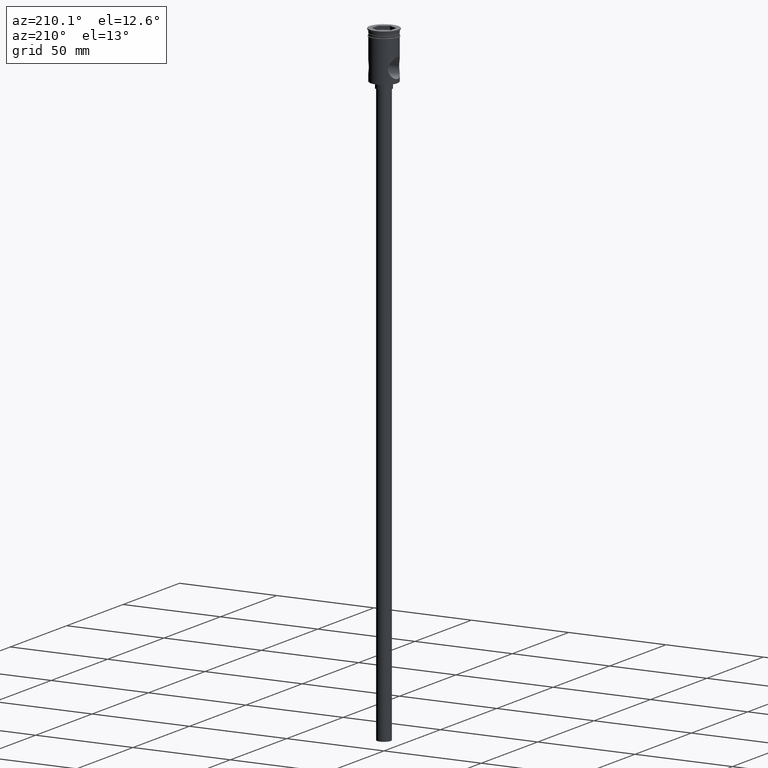
[diagram: clean part render]
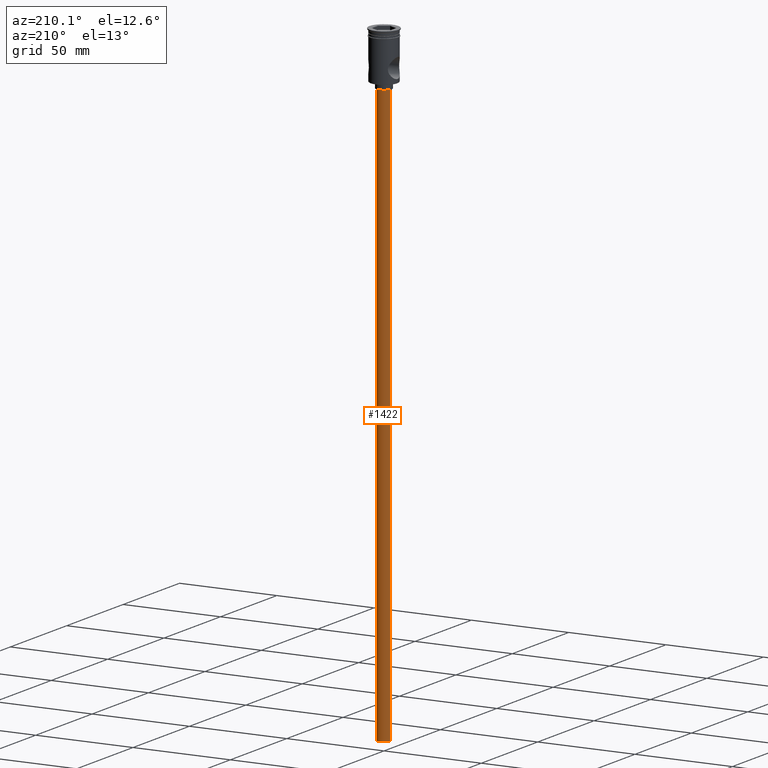
[diagram: same view with one face highlighted and labeled with its STEP entity id]
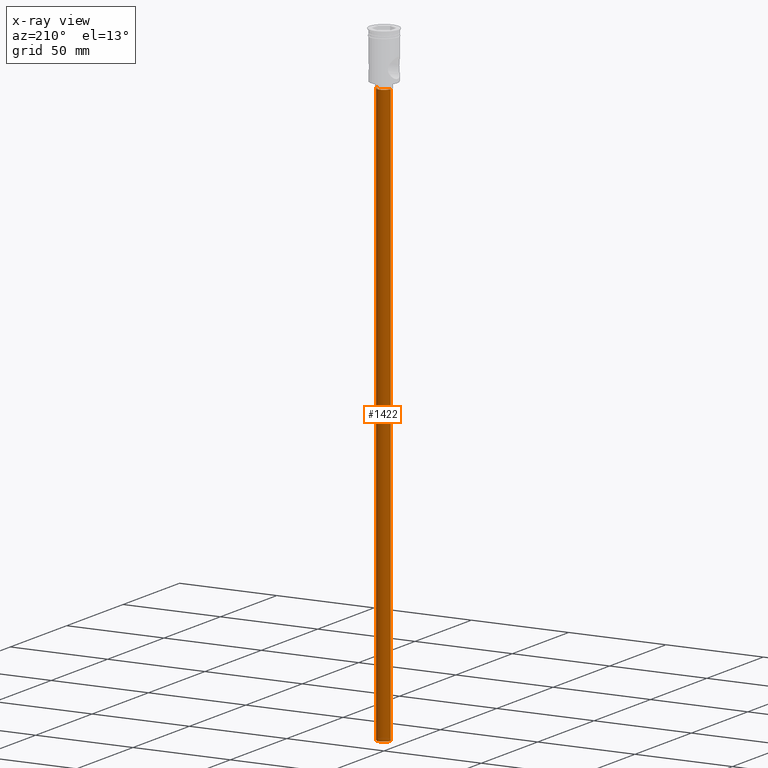
[diagram: x-ray of the same camera — body ghosted, the highlighted face saturated]
A machine part, auxiliary view. The second image highlights one B-rep face of the part: STEP entity #1422.
The next image is the same camera in x-ray: the body ghosted, the highlighted face saturated — about 0% of this face is hidden behind the body in this view.
In plain terms, the highlighted cylindrical surface (edge-blend (fillet) strip) has radius 3.5 mm, axis along (-0, -0, 1).
Its self-contained STEP definition (entity closure, byte-faithful):
#29 = CARTESIAN_POINT ( 'NONE',  ( -3.500000000000000444, 4.286263797015737088E-16, -324.5000000000000000 ) ) ;
#87 = EDGE_CURVE ( 'NONE', #827, #1170, #1202, .T. ) ;
#188 = EDGE_LOOP ( 'NONE', ( #1001, #1128, #482, #995 ) ) ;
#237 = DIRECTION ( 'NONE',  ( -1.000000000000000000, 0.000000000000000000, 0.000000000000000000 ) ) ;
#461 = CARTESIAN_POINT ( 'NONE',  ( 3.500000000000000444, 0.000000000000000000, -324.5000000000000000 ) ) ;
#465 = VECTOR ( 'NONE', #1249, 1000.000000000000000 ) ;
#466 = FACE_OUTER_BOUND ( 'NONE', #188, .T. ) ;
#469 = AXIS2_PLACEMENT_3D ( 'NONE', #613, #946, #237 ) ;
#482 = ORIENTED_EDGE ( 'NONE', *, *, #933, .T. ) ;
#527 = LINE ( 'NONE', #1311, #778 ) ;
#572 = DIRECTION ( 'NONE',  ( 1.000000000000000000, 0.000000000000000000, 0.000000000000000000 ) ) ;
#613 = CARTESIAN_POINT ( 'NONE',  ( 0.000000000000000000, 0.000000000000000000, -324.5000000000000000 ) ) ;
#751 = CIRCLE ( 'NONE', #469, 3.500000000000000444 ) ;
#778 = VECTOR ( 'NONE', #1193, 1000.000000000000000 ) ;
#786 = EDGE_CURVE ( 'NONE', #827, #1093, #751, .T. ) ;
#791 = CARTESIAN_POINT ( 'NONE',  ( 0.000000000000000000, 0.000000000000000000, -27.50000000000000000 ) ) ;
#815 = DIRECTION ( 'NONE',  ( -0.000000000000000000, -0.000000000000000000, 1.000000000000000000 ) ) ;
#827 = VERTEX_POINT ( 'NONE', #29 ) ;
#875 = EDGE_CURVE ( 'NONE', #1093, #1375, #527, .T. ) ;
#933 = EDGE_CURVE ( 'NONE', #1170, #1375, #990, .T. ) ;
#938 = CARTESIAN_POINT ( 'NONE',  ( 0.000000000000000000, 0.000000000000000000, -324.5000000000000000 ) ) ;
#940 = AXIS2_PLACEMENT_3D ( 'NONE', #791, #1232, #996 ) ;
#946 = DIRECTION ( 'NONE',  ( 0.000000000000000000, 0.000000000000000000, -1.000000000000000000 ) ) ;
#990 = CIRCLE ( 'NONE', #940, 3.500000000000000444 ) ;
#995 = ORIENTED_EDGE ( 'NONE', *, *, #875, .F. ) ;
#996 = DIRECTION ( 'NONE',  ( -1.000000000000000000, 0.000000000000000000, 0.000000000000000000 ) ) ;
#1001 = ORIENTED_EDGE ( 'NONE', *, *, #786, .F. ) ;
#1012 = CARTESIAN_POINT ( 'NONE',  ( 3.500000000000000444, 0.000000000000000000, -27.50000000000000000 ) ) ;
#1093 = VERTEX_POINT ( 'NONE', #461 ) ;
#1128 = ORIENTED_EDGE ( 'NONE', *, *, #87, .T. ) ;
#1164 = CARTESIAN_POINT ( 'NONE',  ( -3.500000000000000444, 4.286263797015737088E-16, -27.50000000000000000 ) ) ;
#1170 = VERTEX_POINT ( 'NONE', #1164 ) ;
#1193 = DIRECTION ( 'NONE',  ( -0.000000000000000000, -0.000000000000000000, 1.000000000000000000 ) ) ;
#1202 = LINE ( 'NONE', #1464, #465 ) ;
#1232 = DIRECTION ( 'NONE',  ( 0.000000000000000000, 0.000000000000000000, -1.000000000000000000 ) ) ;
#1249 = DIRECTION ( 'NONE',  ( -0.000000000000000000, -0.000000000000000000, 1.000000000000000000 ) ) ;
#1265 = CYLINDRICAL_SURFACE ( 'NONE', #1454, 3.500000000000000444 ) ;
#1311 = CARTESIAN_POINT ( 'NONE',  ( 3.500000000000000444, 0.000000000000000000, -324.5000000000000000 ) ) ;
#1375 = VERTEX_POINT ( 'NONE', #1012 ) ;
#1422 = ADVANCED_FACE ( 'NONE', ( #466 ), #1265, .T. ) ;
#1454 = AXIS2_PLACEMENT_3D ( 'NONE', #938, #815, #572 ) ;
#1464 = CARTESIAN_POINT ( 'NONE',  ( -3.500000000000000444, 4.286263797015737088E-16, -324.5000000000000000 ) ) ;